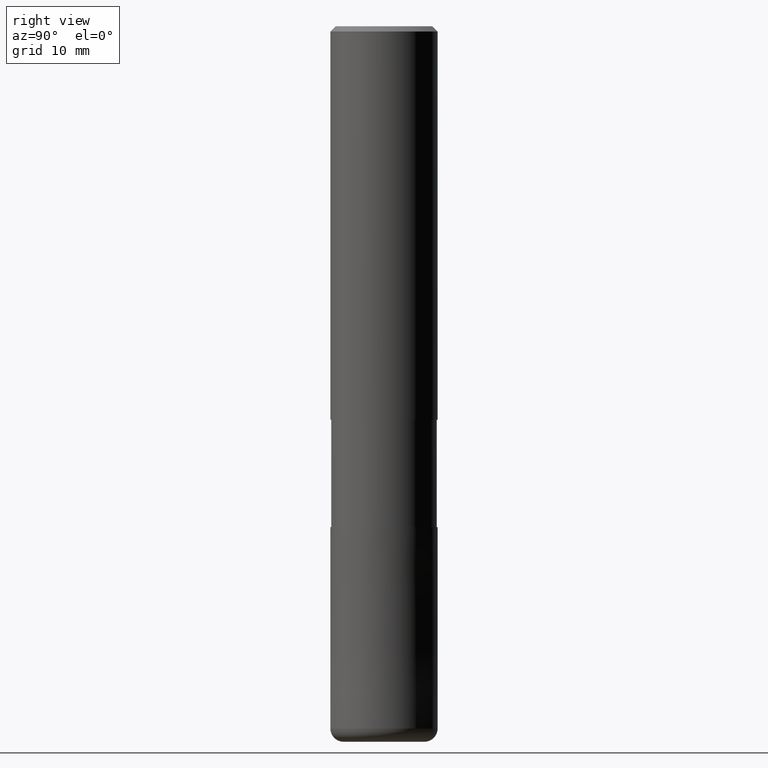
[diagram: clean part render]
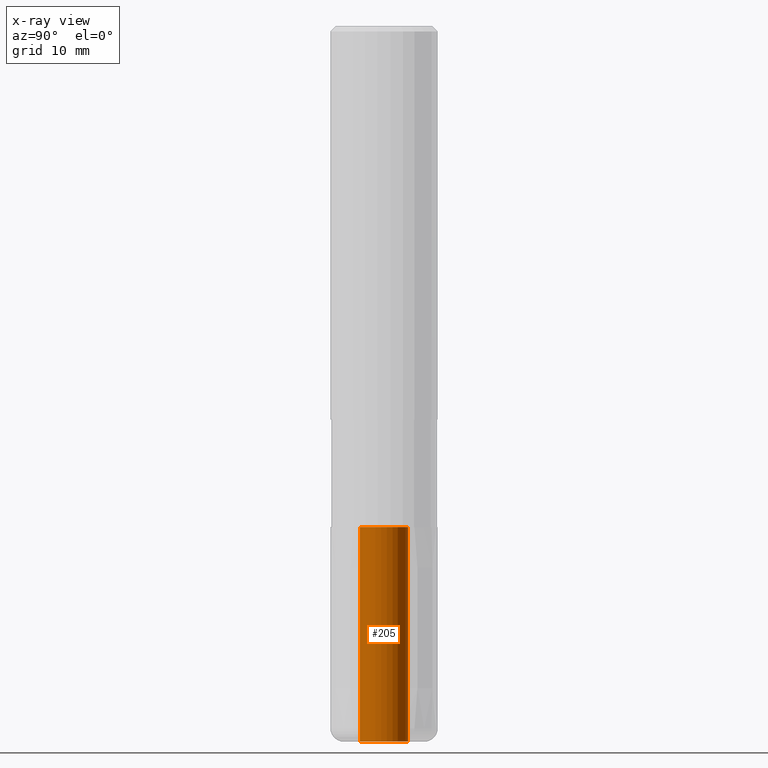
[diagram: x-ray — body ghosted, one internal face saturated and labeled with its STEP entity id]
A machine part, right view, then the same camera in x-ray: the body is ghosted and one INTERNAL B-rep face — a face not visible from any outside direction — is saturated and labeled: STEP entity #205.
In plain terms, the highlighted cylindrical surface (edge-blend (fillet) strip) has radius 2.7 mm, axis along (-0, -0, 1).
Its self-contained STEP definition (entity closure, byte-faithful):
#153=EDGE_CURVE('',#191,#247,#344,.T.);
#191=VERTEX_POINT('',#391);
#205=ADVANCED_FACE('',(#407),#408,.F.);
#219=EDGE_CURVE('',#283,#249,#424,.T.);
#247=VERTEX_POINT('',#453);
#249=VERTEX_POINT('',#455);
#253=EDGE_CURVE('',#249,#247,#459,.T.);
#279=EDGE_CURVE('',#191,#283,#489,.T.);
#283=VERTEX_POINT('',#494);
#344=CIRCLE('',#556,2.7);
#391=CARTESIAN_POINT('',(0.0,2.7,-56.0));
#407=FACE_OUTER_BOUND('',#632,.T.);
#408=CYLINDRICAL_SURFACE('',#633,2.7);
#424=CIRCLE('',#654,2.7);
#453=CARTESIAN_POINT('',(3.30643715532042E-016,-2.7,-56.0));
#455=CARTESIAN_POINT('',(3.30643715532042E-016,-2.7,-80.0));
#459=LINE('',#700,#701);
#489=LINE('',#739,#740);
#494=CARTESIAN_POINT('',(0.0,2.7,-80.0));
#556=AXIS2_PLACEMENT_3D('',#800,#801,#802);
#632=EDGE_LOOP('',(#897,#898,#899,#900));
#633=AXIS2_PLACEMENT_3D('',#901,#902,#903);
#654=AXIS2_PLACEMENT_3D('',#925,#926,#927);
#700=CARTESIAN_POINT('',(3.30643715532042E-016,-2.7,-68.0));
#701=VECTOR('',#950,1.0);
#739=CARTESIAN_POINT('',(-3.30643715532042E-016,2.7,-68.0));
#740=VECTOR('',#986,1.0);
#800=CARTESIAN_POINT('',(0.0,0.0,-56.0));
#801=DIRECTION('',(0.0,0.0,-1.0));
#802=DIRECTION('',(0.0,1.0,0.0));
#897=ORIENTED_EDGE('',*,*,#279,.T.);
#898=ORIENTED_EDGE('',*,*,#219,.T.);
#899=ORIENTED_EDGE('',*,*,#253,.T.);
#900=ORIENTED_EDGE('',*,*,#153,.F.);
#901=CARTESIAN_POINT('',(0.0,0.0,-68.0));
#902=DIRECTION('',(-0.0,-0.0,1.0));
#903=DIRECTION('',(0.0,1.0,0.0));
#925=CARTESIAN_POINT('',(0.0,0.0,-80.0));
#926=DIRECTION('',(0.0,0.0,-1.0));
#927=DIRECTION('',(0.0,1.0,0.0));
#950=DIRECTION('',(0.0,-0.0,1.0));
#986=DIRECTION('',(0.0,-0.0,-1.0));